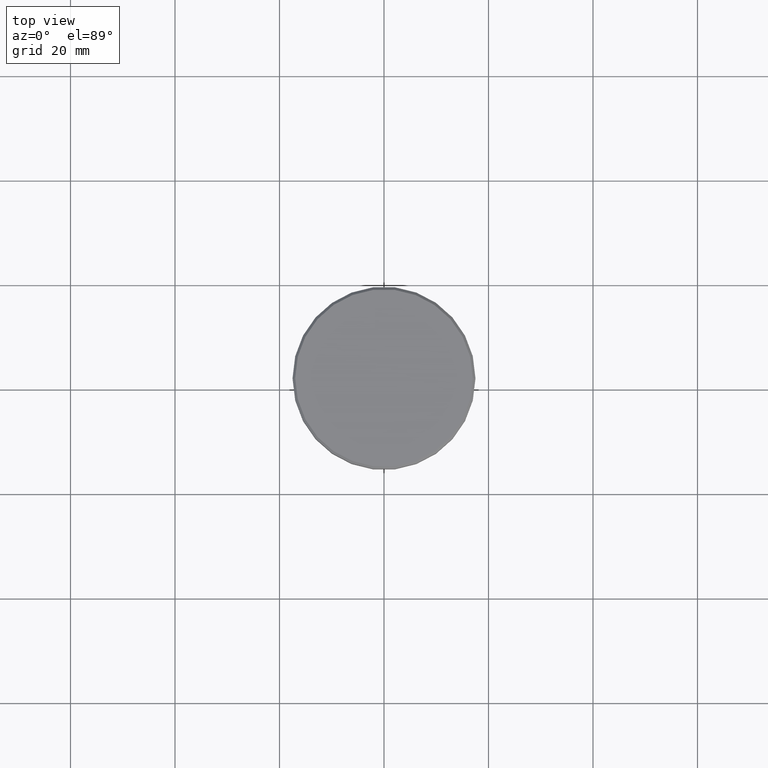
[diagram: clean part render]
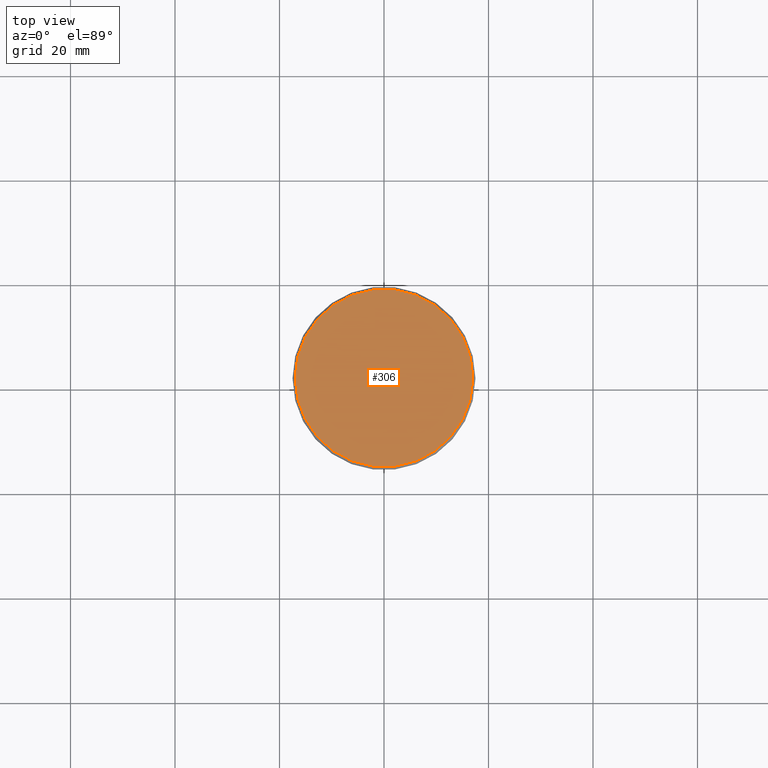
[diagram: same view with one face highlighted and labeled with its STEP entity id]
A machine part, top view. The second image highlights one B-rep face of the part: STEP entity #306.
In plain terms, the highlighted planar face has unit normal (0, -0, 1).
Its self-contained STEP definition (entity closure, byte-faithful):
#42 = AXIS2_PLACEMENT_3D ( 'NONE', #68, #238, #873 ) ;
#68 = CARTESIAN_POINT ( 'NONE',  ( 0.000000000000000000, 0.000000000000000000, 0.000000000000000000 ) ) ;
#88 = DIRECTION ( 'NONE',  ( 1.000000000000000000, 0.000000000000000000, 0.000000000000000000 ) ) ;
#141 = DIRECTION ( 'NONE',  ( 1.000000000000000000, 0.000000000000000000, 0.000000000000000000 ) ) ;
#238 = DIRECTION ( 'NONE',  ( -0.000000000000000000, -0.000000000000000000, 1.000000000000000000 ) ) ;
#281 = VERTEX_POINT ( 'NONE', #699 ) ;
#306 = ADVANCED_FACE ( 'NONE', ( #351 ), #993, .T. ) ;
#351 = FACE_OUTER_BOUND ( 'NONE', #617, .T. ) ;
#353 = ORIENTED_EDGE ( 'NONE', *, *, #1116, .T. ) ;
#356 = DIRECTION ( 'NONE',  ( 0.000000000000000000, -0.000000000000000000, 1.000000000000000000 ) ) ;
#440 = AXIS2_PLACEMENT_3D ( 'NONE', #898, #356, #88 ) ;
#575 = CIRCLE ( 'NONE', #42, 17.00000000000001421 ) ;
#587 = VERTEX_POINT ( 'NONE', #603 ) ;
#597 = CARTESIAN_POINT ( 'NONE',  ( 0.000000000000000000, 0.000000000000000000, 0.000000000000000000 ) ) ;
#603 = CARTESIAN_POINT ( 'NONE',  ( 17.00000000000001421, 2.112515728529185250E-15, 0.000000000000000000 ) ) ;
#617 = EDGE_LOOP ( 'NONE', ( #1085, #353 ) ) ;
#699 = CARTESIAN_POINT ( 'NONE',  ( -17.00000000000001421, 0.000000000000000000, 0.000000000000000000 ) ) ;
#873 = DIRECTION ( 'NONE',  ( 1.000000000000000000, 0.000000000000000000, 0.000000000000000000 ) ) ;
#898 = CARTESIAN_POINT ( 'NONE',  ( 0.000000000000000000, 0.000000000000000000, 0.000000000000000000 ) ) ;
#959 = DIRECTION ( 'NONE',  ( -0.000000000000000000, -0.000000000000000000, 1.000000000000000000 ) ) ;
#993 = PLANE ( 'NONE',  #440 ) ;
#1017 = AXIS2_PLACEMENT_3D ( 'NONE', #597, #959, #141 ) ;
#1085 = ORIENTED_EDGE ( 'NONE', *, *, #1154, .T. ) ;
#1116 = EDGE_CURVE ( 'NONE', #587, #281, #575, .T. ) ;
#1132 = CIRCLE ( 'NONE', #1017, 17.00000000000001421 ) ;
#1154 = EDGE_CURVE ( 'NONE', #281, #587, #1132, .T. ) ;